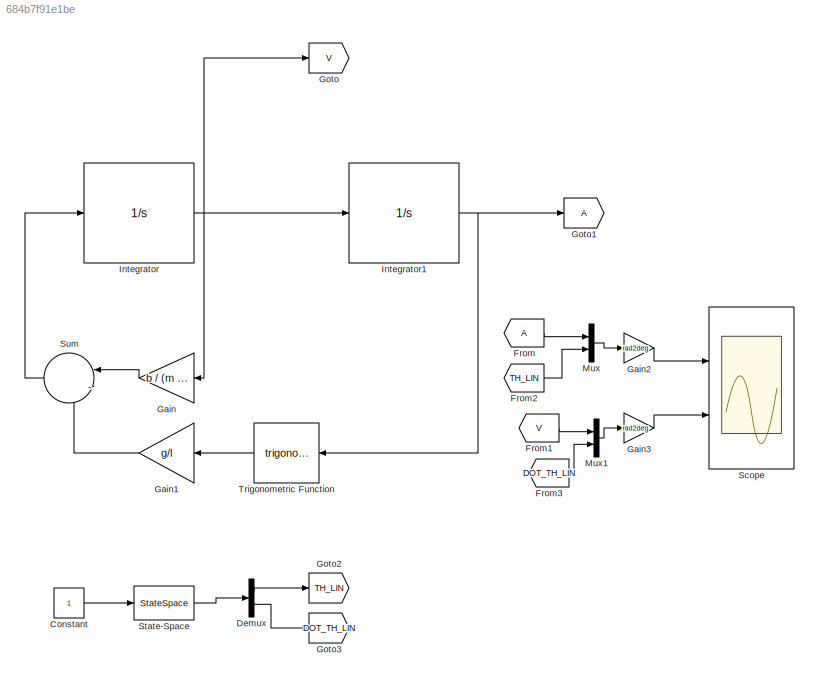
MODEL slx_684b7f91e1be
KIND model
CONFIG AbsTol = auto
CONFIG EnableMultiTasking = off
CONFIG FixedStep = auto
CONFIG MaxStep = 0.01
CONFIG MinStep = auto
CONFIG RelTol = 1e-3
CONFIG SampleTimeConstraint = Unconstrained
CONFIG SolverName = ode45
CONFIG StartTime = 0.0
CONFIG StopTime = 15
BLOCK [Constant] Constant
BLOCK [Demux] Demux
  Outputs = 2
  Ports = [1, 2]
BLOCK [From] From
BLOCK [From] From1
  GotoTag = V
BLOCK [From] From2
  GotoTag = TH_LIN
BLOCK [From] From3
  GotoTag = DOT_TH_LIN
BLOCK [Gain] Gain
  Gain = b / (m * l^2)
BLOCK [Gain] Gain1
  Gain = g/l
BLOCK [Gain] Gain2
  Gain = rad2deg
BLOCK [Gain] Gain3
  Gain = rad2deg
BLOCK [Goto] Goto
  GotoTag = V
BLOCK [Goto] Goto1
BLOCK [Goto] Goto2
  GotoTag = TH_LIN
BLOCK [Goto] Goto3
  GotoTag = DOT_TH_LIN
BLOCK [Integrator] Integrator
  InitialCondition = dot_th0
  Ports = [1, 1]
BLOCK [Integrator] Integrator1
  InitialCondition = th0
  Ports = [1, 1]
BLOCK [Mux] Mux
  DisplayOption = bar
  Inputs = 2
  Ports = [2, 1]
BLOCK [Mux] Mux1
  DisplayOption = bar
  Inputs = 2
  Ports = [2, 1]
BLOCK [Scope] Scope
  Floating = off
  NumInputPorts = 2
  Ports = [2]
  ScopeSpecificationString = Simulink.scopes.TimeScopeBlockCfg('CurrentConfiguration', extmgr.ConfigurationSet(extmgr.Configuration('Core','General UI',true),extmgr.Configuration('Core','Source UI',true),extmgr.Configuration('Sources','WiredSimulink',true,'DataLogging',true,'DataLoggingVariableName','simres','DataLoggingSaveFormat','StructureWithTime'),extmgr.Configuration('Visuals','Time Domain',true,'SerializedDisplays',{st...<+2007ch>
BLOCK [StateSpace] State-Space
  A = A
  B = B
  C = C
  D = D
  InitialCondition = x0
  Ports = [1, 1]
BLOCK [Sum] Sum
  Inputs = |--
  Ports = [2, 1]
BLOCK [Trigonometry] Trigonometric Function
  Ports = [1, 1]
LINE Constant:1 -> State-Space:1
LINE Demux:1 -> Goto2:1
LINE Demux:2 -> Goto3:1
LINE From1:1 -> Mux1:1
LINE From2:1 -> Mux:2
LINE From3:1 -> Mux1:2
LINE From:1 -> Mux:1
LINE Gain1:1 -> Sum:2
LINE Gain2:1 -> Scope:1
LINE Gain3:1 -> Scope:2
LINE Gain:1 -> Sum:1
NET Integrator1:1 -> Goto1:1, Trigonometric Function:1
NET Integrator:1 -> Gain:1, Goto:1, Integrator1:1
LINE Mux1:1 -> Gain3:1
LINE Mux:1 -> Gain2:1
LINE State-Space:1 -> Demux:1
LINE Sum:1 -> Integrator:1
LINE Trigonometric Function:1 -> Gain1:1
note: NET lines group one-source signal fan-out (src -> all destinations, sorted); 1:1 wires keep LINE
